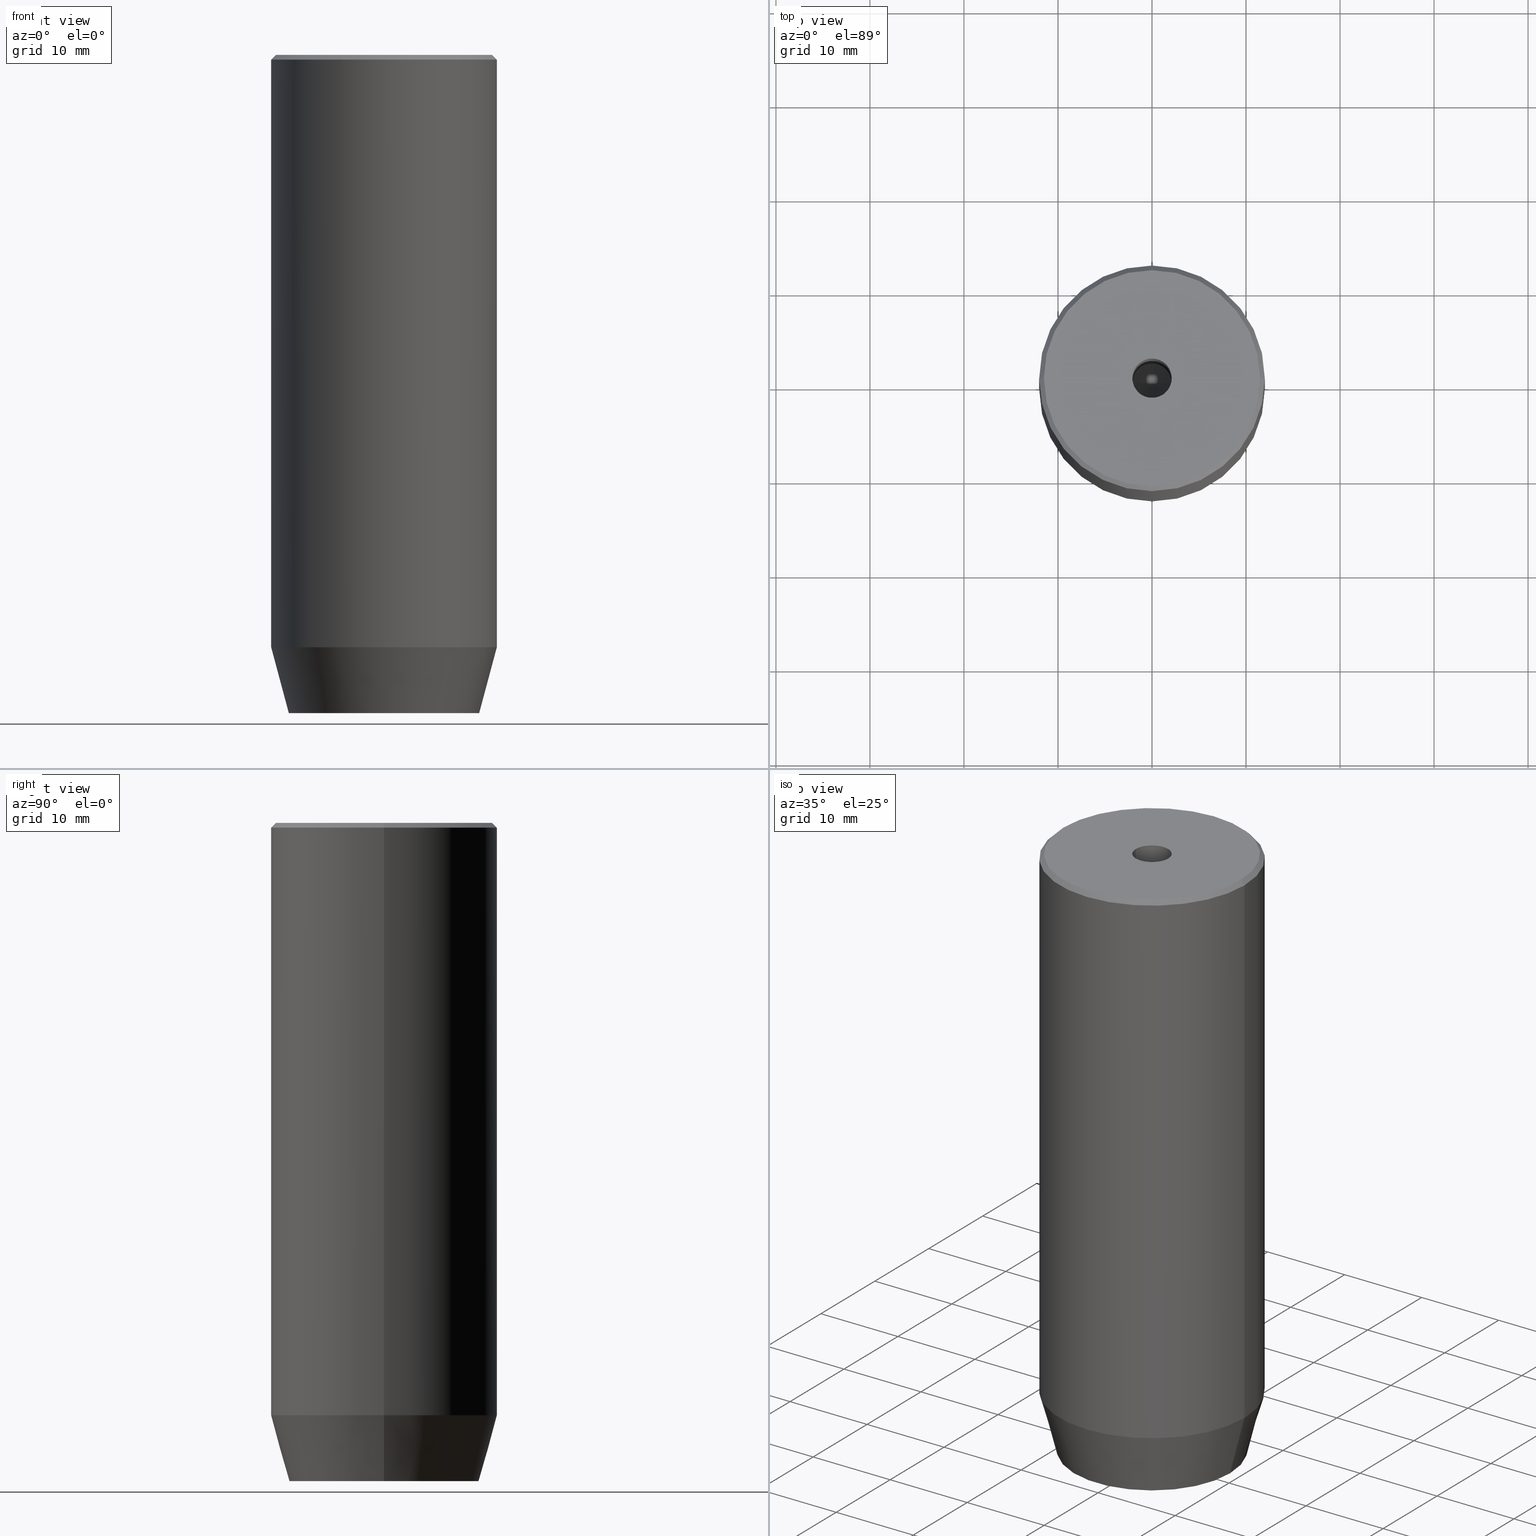
[diagram: canonical four-view strip — front | top / right | iso, engineering-drawing reading convention]
A machine part, canonical four-view strip (front | top / right | iso — engineering-drawing reading convention). The complete STEP part file that produces these views, byte-faithful:
ISO-10303-21;
HEADER;
FILE_DESCRIPTION (( 'STEP AP203' ),
    '1' );
FILE_NAME ('1490.STEP',
    '2024-01-02T17:16:59',
    ( '' ),
    ( '' ),
    'SwSTEP 2.0',
    'SolidWorks 2019',
    '' );
FILE_SCHEMA (( 'CONFIG_CONTROL_DESIGN' ));
ENDSEC;

DATA;
#1 = EDGE_LOOP ( 'NONE', ( #370, #400, #61, #119 ) ) ;
#2 = CARTESIAN_POINT ( 'NONE',  ( -4.000000000000000000, -2.309401076758503368, -67.20000000000000284 ) ) ;
#3 = ADVANCED_BREP_SHAPE_REPRESENTATION ( '1490', ( #512, #215 ), #463 ) ;
#4 = PLANE ( 'NONE',  #214 ) ;
#5 = EDGE_CURVE ( 'NONE', #216, #19, #452, .T. ) ;
#6 = AXIS2_PLACEMENT_3D ( 'NONE', #349, #426, #298 ) ;
#7 = CARTESIAN_POINT ( 'NONE',  ( -10.12435565298213547, 1.354726066681111050E-15, -70.00000000000000000 ) ) ;
#8 = CONICAL_SURFACE ( 'NONE', #102, 11.50000000000000888, 0.7853981633974482790 ) ;
#9 = ADVANCED_FACE ( 'NONE', ( #388 ), #477, .F. ) ;
#10 = FACE_OUTER_BOUND ( 'NONE', #42, .T. ) ;
#11 = DIRECTION ( 'NONE',  ( 1.000000000000000000, 0.000000000000000000, 0.000000000000000000 ) ) ;
#12 = AXIS2_PLACEMENT_3D ( 'NONE', #538, #484, #308 ) ;
#13 = DIRECTION ( 'NONE',  ( -0.000000000000000000, -0.000000000000000000, -1.000000000000000000 ) ) ;
#14 = VERTEX_POINT ( 'NONE', #166 ) ;
#15 = CC_DESIGN_APPROVAL ( #75, ( #112 ) ) ;
#16 = DIRECTION ( 'NONE',  ( -0.000000000000000000, -0.000000000000000000, 1.000000000000000000 ) ) ;
#17 = ORIENTED_EDGE ( 'NONE', *, *, #55, .T. ) ;
#18 = CARTESIAN_POINT ( 'NONE',  ( 2.000000000000000888, -3.464101615137754386, -70.00000000000000000 ) ) ;
#19 = VERTEX_POINT ( 'NONE', #209 ) ;
#20 = AXIS2_PLACEMENT_3D ( 'NONE', #435, #495, #437 ) ;
#21 = CARTESIAN_POINT ( 'NONE',  ( 4.000000000000000000, 2.309401076758503368, -67.20000000000000284 ) ) ;
#22 = EDGE_LOOP ( 'NONE', ( #517, #586, #278, #540 ) ) ;
#23 = CONICAL_SURFACE ( 'NONE', #193, 2.099999999999994760, 1.029744258676652535 ) ;
#24 = PLANE ( 'NONE',  #351 ) ;
#25 = ORIENTED_EDGE ( 'NONE', *, *, #157, .T. ) ;
#26 = PERSON_AND_ORGANIZATION_ROLE ( 'creator' ) ;
#27 = DIRECTION ( 'NONE',  ( -1.000000000000000000, 0.000000000000000000, -0.000000000000000000 ) ) ;
#28 = ORIENTED_EDGE ( 'NONE', *, *, #261, .T. ) ;
#29 = CARTESIAN_POINT ( 'NONE',  ( -4.000000000000000000, 0.000000000000000000, -67.20000000000000284 ) ) ;
#30 = ORIENTED_EDGE ( 'NONE', *, *, #354, .F. ) ;
#31 = LINE ( 'NONE', #160, #547 ) ;
#32 = CIRCLE ( 'NONE', #421, 10.12435565298213547 ) ;
#33 = DIRECTION ( 'NONE',  ( -1.000000000000000000, 0.000000000000000000, 0.000000000000000000 ) ) ;
#34 = EDGE_LOOP ( 'NONE', ( #235, #300, #101, #169 ) ) ;
#35 = EDGE_CURVE ( 'NONE', #519, #325, #394, .T. ) ;
#36 = FACE_OUTER_BOUND ( 'NONE', #534, .T. ) ;
#37 = DIRECTION ( 'NONE',  ( -0.5000000000000003331, -0.8660254037844385966, 0.000000000000000000 ) ) ;
#38 = APPLICATION_CONTEXT ( 'configuration controlled 3d designs of mechanical parts and assemblies' ) ;
#39 = CLOSED_SHELL ( 'NONE', ( #409, #326, #501, #181, #482, #466, #137, #79, #581, #130, #457, #405, #9, #198, #528, #327, #312, #361, #430 ) ) ;
#40 = CARTESIAN_POINT ( 'NONE',  ( 0.000000000000000000, 0.000000000000000000, -30.00000000000000000 ) ) ;
#41 = VECTOR ( 'NONE', #420, 1000.000000000000114 ) ;
#42 = EDGE_LOOP ( 'NONE', ( #439, #17 ) ) ;
#43 = AXIS2_PLACEMENT_3D ( 'NONE', #458, #16, #105 ) ;
#44 = LOCAL_TIME ( 18, 16, 59.00000000000000000, #431 ) ;
#45 = DIRECTION ( 'NONE',  ( 1.000000000000000000, 0.000000000000000000, 0.000000000000000000 ) ) ;
#46 = CC_DESIGN_PERSON_AND_ORGANIZATION_ASSIGNMENT ( #427, #200, ( #258 ) ) ;
#47 = EDGE_CURVE ( 'NONE', #382, #216, #31, .T. ) ;
#48 = CARTESIAN_POINT ( 'NONE',  ( -11.50000000000000888, 0.000000000000000000, 0.000000000000000000 ) ) ;
#49 = DIRECTION ( 'NONE',  ( 1.000000000000000000, 0.000000000000000000, 0.000000000000000000 ) ) ;
#50 = LINE ( 'NONE', #218, #277 ) ;
#51 = CARTESIAN_POINT ( 'NONE',  ( 4.000000000000000000, 0.000000000000000000, -70.00000000000000000 ) ) ;
#52 = LINE ( 'NONE', #18, #350 ) ;
#53 = ORIENTED_EDGE ( 'NONE', *, *, #5, .T. ) ;
#54 = FACE_OUTER_BOUND ( 'NONE', #114, .T. ) ;
#55 = EDGE_CURVE ( 'NONE', #250, #146, #107, .T. ) ;
#56 = ORIENTED_EDGE ( 'NONE', *, *, #47, .T. ) ;
#57 = SHAPE_DEFINITION_REPRESENTATION ( #496, #3 ) ;
#58 = CARTESIAN_POINT ( 'NONE',  ( 12.00000000000000000, 0.000000000000000000, -63.00000000000000000 ) ) ;
#59 = ORIENTED_EDGE ( 'NONE', *, *, #171, .F. ) ;
#60 = CARTESIAN_POINT ( 'NONE',  ( -12.00000000000000000, 1.469576158976823947E-15, -63.00000000000000000 ) ) ;
#61 = ORIENTED_EDGE ( 'NONE', *, *, #62, .T. ) ;
#62 = EDGE_CURVE ( 'NONE', #19, #216, #582, .T. ) ;
#63 = VECTOR ( 'NONE', #499, 1000.000000000000000 ) ;
#64 = FACE_OUTER_BOUND ( 'NONE', #531, .T. ) ;
#65 = VERTEX_POINT ( 'NONE', #71 ) ;
#66 = APPROVAL_PERSON_ORGANIZATION ( #383, #371, #346 ) ;
#67 = DIRECTION ( 'NONE',  ( 1.000000000000000000, 0.000000000000000000, 0.000000000000000000 ) ) ;
#68 = CARTESIAN_POINT ( 'NONE',  ( -2.000000000000000888, -3.464101615137754386, -67.20000000000000284 ) ) ;
#69 = CARTESIAN_POINT ( 'NONE',  ( 0.000000000000000000, 0.000000000000000000, 0.000000000000000000 ) ) ;
#70 = ORIENTED_EDGE ( 'NONE', *, *, #203, .T. ) ;
#71 = CARTESIAN_POINT ( 'NONE',  ( 2.099999999999998757, 0.000000000000000000, -1.990051048614449116E-16 ) ) ;
#72 = CIRCLE ( 'NONE', #395, 11.50000000000000888 ) ;
#73 = CARTESIAN_POINT ( 'NONE',  ( 4.000000000000000000, -2.309401076758502480, -70.00000000000000000 ) ) ;
#74 = LINE ( 'NONE', #164, #179 ) ;
#75 = APPROVAL ( #500, 'NEUR�EN�' ) ;
#76 = CIRCLE ( 'NONE', #529, 12.00000000000000000 ) ;
#77 = CYLINDRICAL_SURFACE ( 'NONE', #541, 12.00000000000000000 ) ;
#78 = ORIENTED_EDGE ( 'NONE', *, *, #245, .T. ) ;
#79 = ADVANCED_FACE ( 'NONE', ( #116 ), #398, .T. ) ;
#80 = DIRECTION ( 'NONE',  ( 0.8660254037844387076, 0.5000000000000001110, 0.000000000000000000 ) ) ;
#81 = DIRECTION ( 'NONE',  ( 0.8660254037844385966, -0.5000000000000001110, 0.000000000000000000 ) ) ;
#82 = PRODUCT ( '1490', '1490', '', ( #253 ) ) ;
#83 = ORIENTED_EDGE ( 'NONE', *, *, #354, .T. ) ;
#84 =( NAMED_UNIT ( * ) PLANE_ANGLE_UNIT ( ) SI_UNIT ( $, .RADIAN. ) );
#85 = CARTESIAN_POINT ( 'NONE',  ( 0.000000000000000000, 0.000000000000000000, 0.000000000000000000 ) ) ;
#86 = AXIS2_PLACEMENT_3D ( 'NONE', #234, #460, #415 ) ;
#87 = LINE ( 'NONE', #2, #584 ) ;
#88 = DIRECTION ( 'NONE',  ( -0.000000000000000000, -0.000000000000000000, 1.000000000000000000 ) ) ;
#89 = PLANE ( 'NONE',  #229 ) ;
#90 = VECTOR ( 'NONE', #129, 1000.000000000000114 ) ;
#91 = EDGE_CURVE ( 'NONE', #125, #373, #74, .T. ) ;
#92 = PRODUCT_RELATED_PRODUCT_CATEGORY ( 'detail', '', ( #82 ) ) ;
#93 = DIRECTION ( 'NONE',  ( -0.000000000000000000, -0.000000000000000000, 1.000000000000000000 ) ) ;
#94 = VECTOR ( 'NONE', #100, 1000.000000000000000 ) ;
#95 = CARTESIAN_POINT ( 'NONE',  ( 2.099999999999994760, 0.000000000000000000, -30.00000000000000000 ) ) ;
#96 = ORIENTED_EDGE ( 'NONE', *, *, #145, .T. ) ;
#97 = EDGE_CURVE ( 'NONE', #149, #264, #568, .T. ) ;
#98 = DIRECTION ( 'NONE',  ( 0.000000000000000000, -1.000000000000000000, 0.000000000000000000 ) ) ;
#99 = ORIENTED_EDGE ( 'NONE', *, *, #91, .F. ) ;
#100 = DIRECTION ( 'NONE',  ( -0.000000000000000000, -0.000000000000000000, -1.000000000000000000 ) ) ;
#101 = ORIENTED_EDGE ( 'NONE', *, *, #491, .F. ) ;
#102 = AXIS2_PLACEMENT_3D ( 'NONE', #381, #530, #33 ) ;
#103 = DIRECTION ( 'NONE',  ( -0.2588190451025213501, 3.169619151431772337E-17, 0.9659258262890680902 ) ) ;
#104 = EDGE_LOOP ( 'NONE', ( #334, #266, #25, #355 ) ) ;
#105 = DIRECTION ( 'NONE',  ( 1.000000000000000000, 0.000000000000000000, 0.000000000000000000 ) ) ;
#106 = ORIENTED_EDGE ( 'NONE', *, *, #344, .T. ) ;
#107 = CIRCLE ( 'NONE', #6, 11.50000000000000888 ) ;
#108 = CARTESIAN_POINT ( 'NONE',  ( -2.000000000000000000, 3.464101615137754830, -70.00000000000000000 ) ) ;
#109 = VERTEX_POINT ( 'NONE', #453 ) ;
#110 = VECTOR ( 'NONE', #240, 1000.000000000000000 ) ;
#111 = CALENDAR_DATE ( 2024, 2, 1 ) ;
#112 = SECURITY_CLASSIFICATION ( '', '', #399 ) ;
#113 = PLANE ( 'NONE',  #206 ) ;
#114 = EDGE_LOOP ( 'NONE', ( #522, #497, #83 ) ) ;
#115 = DIRECTION ( 'NONE',  ( -0.000000000000000000, -0.000000000000000000, 1.000000000000000000 ) ) ;
#116 = FACE_OUTER_BOUND ( 'NONE', #233, .T. ) ;
#117 = DATE_AND_TIME ( #161, #44 ) ;
#118 = CYLINDRICAL_SURFACE ( 'NONE', #585, 2.099999999999996980 ) ;
#119 = ORIENTED_EDGE ( 'NONE', *, *, #47, .F. ) ;
#120 = DIRECTION ( 'NONE',  ( -0.000000000000000000, -0.000000000000000000, 1.000000000000000000 ) ) ;
#121 = COORDINATED_UNIVERSAL_TIME_OFFSET ( 1, 0, .AHEAD. ) ;
#122 = CIRCLE ( 'NONE', #572, 2.099999999999998757 ) ;
#123 = CARTESIAN_POINT ( 'NONE',  ( 10.12435565298213547, 0.000000000000000000, -70.00000000000000000 ) ) ;
#124 = VERTEX_POINT ( 'NONE', #127 ) ;
#125 = VERTEX_POINT ( 'NONE', #271 ) ;
#126 = CARTESIAN_POINT ( 'NONE',  ( 0.000000000000000000, 0.000000000000000000, -70.00000000000000000 ) ) ;
#127 = CARTESIAN_POINT ( 'NONE',  ( -4.000000000000000000, 2.309401076758503368, -70.00000000000000000 ) ) ;
#128 = DIRECTION ( 'NONE',  ( 0.000000000000000000, 0.000000000000000000, -1.000000000000000000 ) ) ;
#129 = DIRECTION ( 'NONE',  ( -0.7071067811865474617, 0.000000000000000000, -0.7071067811865474617 ) ) ;
#130 = ADVANCED_FACE ( 'NONE', ( #406 ), #485, .T. ) ;
#131 = CARTESIAN_POINT ( 'NONE',  ( 4.336808689942017736E-16, -4.618802153517006737, -67.20000000000000284 ) ) ;
#132 = LINE ( 'NONE', #131, #489 ) ;
#133 = LINE ( 'NONE', #328, #134 ) ;
#134 = VECTOR ( 'NONE', #98, 1000.000000000000000 ) ;
#135 = VECTOR ( 'NONE', #436, 1000.000000000000000 ) ;
#136 = EDGE_CURVE ( 'NONE', #146, #19, #170, .T. ) ;
#137 = ADVANCED_FACE ( 'NONE', ( #502, #10 ), #89, .T. ) ;
#138 = CC_DESIGN_PERSON_AND_ORGANIZATION_ASSIGNMENT ( #239, #26, ( #470 ) ) ;
#139 = LINE ( 'NONE', #285, #322 ) ;
#140 = EDGE_CURVE ( 'NONE', #211, #264, #224, .T. ) ;
#141 = ORIENTED_EDGE ( 'NONE', *, *, #491, .T. ) ;
#142 = CARTESIAN_POINT ( 'NONE',  ( -4.000000000000000000, -2.309401076758503368, -70.00000000000000000 ) ) ;
#143 = ORIENTED_EDGE ( 'NONE', *, *, #5, .F. ) ;
#144 = FACE_OUTER_BOUND ( 'NONE', #345, .T. ) ;
#145 = EDGE_CURVE ( 'NONE', #14, #257, #50, .T. ) ;
#146 = VERTEX_POINT ( 'NONE', #48 ) ;
#147 = VECTOR ( 'NONE', #578, 1000.000000000000000 ) ;
#148 = CARTESIAN_POINT ( 'NONE',  ( 12.00000000000000000, 0.000000000000000000, -63.00000000000000000 ) ) ;
#149 = VERTEX_POINT ( 'NONE', #359 ) ;
#150 = CARTESIAN_POINT ( 'NONE',  ( 0.000000000000000000, 4.618802153517006737, -67.20000000000000284 ) ) ;
#151 = ORIENTED_EDGE ( 'NONE', *, *, #97, .T. ) ;
#152 = APPROVAL_ROLE ( '' ) ;
#153 = LINE ( 'NONE', #29, #223 ) ;
#154 = ORIENTED_EDGE ( 'NONE', *, *, #397, .F. ) ;
#155 = DIRECTION ( 'NONE',  ( 1.000000000000000000, 0.000000000000000000, 0.000000000000000000 ) ) ;
#156 = EDGE_CURVE ( 'NONE', #542, #65, #510, .T. ) ;
#157 = EDGE_CURVE ( 'NONE', #149, #65, #318, .T. ) ;
#158 = FACE_OUTER_BOUND ( 'NONE', #1, .T. ) ;
#159 = LINE ( 'NONE', #511, #147 ) ;
#160 = CARTESIAN_POINT ( 'NONE',  ( 12.00000000000000000, 0.000000000000000000, 0.000000000000000000 ) ) ;
#161 = CALENDAR_DATE ( 2024, 2, 1 ) ;
#162 = CARTESIAN_POINT ( 'NONE',  ( -2.099999999999998757, 2.571758278209440478E-16, -1.990051048614449116E-16 ) ) ;
#163 = CARTESIAN_POINT ( 'NONE',  ( 0.000000000000000000, 0.000000000000000000, 0.000000000000000000 ) ) ;
#164 = CARTESIAN_POINT ( 'NONE',  ( 2.000000000000000444, 3.464101615137754386, -67.20000000000000284 ) ) ;
#165 = FACE_OUTER_BOUND ( 'NONE', #473, .T. ) ;
#166 = CARTESIAN_POINT ( 'NONE',  ( 4.336808689942017736E-16, -4.618802153517006737, -70.00000000000000000 ) ) ;
#167 = EDGE_CURVE ( 'NONE', #146, #250, #72, .T. ) ;
#168 = ORIENTED_EDGE ( 'NONE', *, *, #411, .F. ) ;
#169 = ORIENTED_EDGE ( 'NONE', *, *, #226, .T. ) ;
#170 = LINE ( 'NONE', #267, #90 ) ;
#171 = EDGE_CURVE ( 'NONE', #348, #382, #472, .T. ) ;
#172 = CARTESIAN_POINT ( 'NONE',  ( 0.000000000000000000, 0.000000000000000000, 0.000000000000000000 ) ) ;
#173 = COORDINATED_UNIVERSAL_TIME_OFFSET ( 1, 0, .AHEAD. ) ;
#174 = EDGE_CURVE ( 'NONE', #257, #124, #549, .T. ) ;
#175 = VECTOR ( 'NONE', #80, 999.9999999999998863 ) ;
#176 = CARTESIAN_POINT ( 'NONE',  ( 0.000000000000000000, 0.000000000000000000, -1.990051048614449116E-16 ) ) ;
#177 = CALENDAR_DATE ( 2024, 2, 1 ) ;
#178 = DIRECTION ( 'NONE',  ( -0.8660254037844384856, 0.5000000000000002220, 0.000000000000000000 ) ) ;
#179 = VECTOR ( 'NONE', #81, 1000.000000000000000 ) ;
#180 = DIRECTION ( 'NONE',  ( -0.8660254037844384856, -0.5000000000000002220, 0.000000000000000000 ) ) ;
#181 = ADVANCED_FACE ( 'NONE', ( #353 ), #280, .T. ) ;
#182 = AXIS2_PLACEMENT_3D ( 'NONE', #372, #232, #185 ) ;
#183 = DIRECTION ( 'NONE',  ( -0.000000000000000000, -0.000000000000000000, 1.000000000000000000 ) ) ;
#184 = ORIENTED_EDGE ( 'NONE', *, *, #507, .T. ) ;
#185 = DIRECTION ( 'NONE',  ( 1.000000000000000000, 0.000000000000000000, 0.000000000000000000 ) ) ;
#186 = ORIENTED_EDGE ( 'NONE', *, *, #35, .T. ) ;
#187 = DIRECTION ( 'NONE',  ( 0.8571673007021113344, 0.000000000000000000, 0.5150380749100558209 ) ) ;
#188 = ORIENTED_EDGE ( 'NONE', *, *, #456, .T. ) ;
#189 = EDGE_CURVE ( 'NONE', #241, #14, #132, .T. ) ;
#190 = CARTESIAN_POINT ( 'NONE',  ( -12.00000000000000000, 1.469576158976823947E-15, -63.00000000000000000 ) ) ;
#191 = ORIENTED_EDGE ( 'NONE', *, *, #171, .T. ) ;
#192 = CC_DESIGN_DATE_AND_TIME_ASSIGNMENT ( #545, #396, ( #112 ) ) ;
#193 = AXIS2_PLACEMENT_3D ( 'NONE', #330, #183, #556 ) ;
#194 = DIRECTION ( 'NONE',  ( 0.000000000000000000, 0.000000000000000000, -1.000000000000000000 ) ) ;
#195 = VERTEX_POINT ( 'NONE', #320 ) ;
#196 = DATE_TIME_ROLE ( 'creation_date' ) ;
#197 = DIRECTION ( 'NONE',  ( 0.8660254037844387076, 0.5000000000000001110, 0.000000000000000000 ) ) ;
#198 = ADVANCED_FACE ( 'NONE', ( #513 ), #4, .F. ) ;
#199 = ORIENTED_EDGE ( 'NONE', *, *, #507, .F. ) ;
#200 = PERSON_AND_ORGANIZATION_ROLE ( 'creator' ) ;
#201 = DIRECTION ( 'NONE',  ( 0.000000000000000000, 0.000000000000000000, 1.000000000000000000 ) ) ;
#202 = ORIENTED_EDGE ( 'NONE', *, *, #344, .F. ) ;
#203 = EDGE_CURVE ( 'NONE', #325, #480, #314, .T. ) ;
#204 = EDGE_LOOP ( 'NONE', ( #377, #524 ) ) ;
#205 = CONICAL_SURFACE ( 'NONE', #43, 2.099999999999994760, 1.029744258676652535 ) ;
#206 = AXIS2_PLACEMENT_3D ( 'NONE', #479, #392, #525 ) ;
#207 = PERSON ( 'NEUR�EN�', 'NEUR�EN�', 'NEUR�EN�', ('NEUR�EN�'), ('NEUR�EN�'), ('NEUR�EN�') ) ;
#208 = CARTESIAN_POINT ( 'NONE',  ( 0.000000000000000000, 4.618802153517006737, -70.00000000000000000 ) ) ;
#209 = CARTESIAN_POINT ( 'NONE',  ( -12.00000000000000000, 1.469576158976823947E-15, -0.4999999999999917843 ) ) ;
#210 = ORIENTED_EDGE ( 'NONE', *, *, #289, .T. ) ;
#211 = VERTEX_POINT ( 'NONE', #444 ) ;
#212 = CARTESIAN_POINT ( 'NONE',  ( 0.000000000000000000, 0.000000000000000000, 0.000000000000000000 ) ) ;
#213 = EDGE_LOOP ( 'NONE', ( #255, #237, #526, #143 ) ) ;
#214 = AXIS2_PLACEMENT_3D ( 'NONE', #273, #455, #362 ) ;
#215 = AXIS2_PLACEMENT_3D ( 'NONE', #212, #414, #155 ) ;
#216 = VERTEX_POINT ( 'NONE', #401 ) ;
#217 = DIRECTION ( 'NONE',  ( -0.000000000000000000, -0.000000000000000000, 1.000000000000000000 ) ) ;
#218 = CARTESIAN_POINT ( 'NONE',  ( -2.000000000000000888, -3.464101615137754386, -70.00000000000000000 ) ) ;
#219 = UNCERTAINTY_MEASURE_WITH_UNIT (LENGTH_MEASURE( 1.000000000000000082E-05 ), #301, 'distance_accuracy_value', 'NONE');
#220 = DIRECTION ( 'NONE',  ( -0.000000000000000000, -0.000000000000000000, 1.000000000000000000 ) ) ;
#221 = CARTESIAN_POINT ( 'NONE',  ( 4.336808689942017736E-16, -4.618802153517006737, -67.20000000000000284 ) ) ;
#222 = VECTOR ( 'NONE', #13, 1000.000000000000000 ) ;
#223 = VECTOR ( 'NONE', #428, 1000.000000000000000 ) ;
#224 = LINE ( 'NONE', #270, #252 ) ;
#225 = DIRECTION ( 'NONE',  ( 1.000000000000000000, 0.000000000000000000, 0.000000000000000000 ) ) ;
#226 = EDGE_CURVE ( 'NONE', #109, #257, #87, .T. ) ;
#227 = DIRECTION ( 'NONE',  ( 0.000000000000000000, -1.000000000000000000, 0.000000000000000000 ) ) ;
#228 = DIRECTION ( 'NONE',  ( -1.000000000000000000, 0.000000000000000000, -0.000000000000000000 ) ) ;
#229 = AXIS2_PLACEMENT_3D ( 'NONE', #508, #403, #11 ) ;
#230 = VERTEX_POINT ( 'NONE', #7 ) ;
#231 = AXIS2_PLACEMENT_3D ( 'NONE', #554, #402, #45 ) ;
#232 = DIRECTION ( 'NONE',  ( -0.000000000000000000, -0.000000000000000000, 1.000000000000000000 ) ) ;
#233 = EDGE_LOOP ( 'NONE', ( #443, #191, #56, #53 ) ) ;
#234 = CARTESIAN_POINT ( 'NONE',  ( 0.000000000000000000, 0.000000000000000000, -30.00000000000000000 ) ) ;
#235 = ORIENTED_EDGE ( 'NONE', *, *, #174, .T. ) ;
#236 = DIRECTION ( 'NONE',  ( 0.7071067811865474617, 8.659560562354932858E-17, -0.7071067811865474617 ) ) ;
#237 = ORIENTED_EDGE ( 'NONE', *, *, #167, .F. ) ;
#238 = VECTOR ( 'NONE', #246, 1000.000000000000000 ) ;
#239 = PERSON_AND_ORGANIZATION ( #207, #551 ) ;
#240 = DIRECTION ( 'NONE',  ( 0.2588190451025213501, 0.000000000000000000, 0.9659258262890680902 ) ) ;
#241 = VERTEX_POINT ( 'NONE', #221 ) ;
#242 = AXIS2_PLACEMENT_3D ( 'NONE', #393, #217, #433 ) ;
#243 = APPLICATION_PROTOCOL_DEFINITION ( 'international standard', 'config_control_design', 1994, #575 ) ;
#244 = FACE_OUTER_BOUND ( 'NONE', #329, .T. ) ;
#245 = EDGE_CURVE ( 'NONE', #286, #480, #553, .T. ) ;
#246 = DIRECTION ( 'NONE',  ( 0.8660254037844385966, -0.5000000000000001110, 0.000000000000000000 ) ) ;
#247 = APPROVAL ( #380, 'NEUR�EN�' ) ;
#248 = EDGE_CURVE ( 'NONE', #480, #14, #52, .T. ) ;
#249 = FACE_OUTER_BOUND ( 'NONE', #22, .T. ) ;
#250 = VERTEX_POINT ( 'NONE', #515 ) ;
#251 = ORIENTED_EDGE ( 'NONE', *, *, #157, .F. ) ;
#252 = VECTOR ( 'NONE', #310, 1000.000000000000000 ) ;
#253 = MECHANICAL_CONTEXT ( 'NONE', #38, 'mechanical' ) ;
#254 = DIRECTION ( 'NONE',  ( -0.000000000000000000, -0.000000000000000000, 1.000000000000000000 ) ) ;
#255 = ORIENTED_EDGE ( 'NONE', *, *, #365, .F. ) ;
#256 = FACE_OUTER_BOUND ( 'NONE', #309, .T. ) ;
#257 = VERTEX_POINT ( 'NONE', #142 ) ;
#258 = PRODUCT_DEFINITION_FORMATION_WITH_SPECIFIED_SOURCE ( 'LIBOVOLN�', '', #82, .NOT_KNOWN. ) ;
#259 = CARTESIAN_POINT ( 'NONE',  ( 0.000000000000000000, 0.000000000000000000, 0.000000000000000000 ) ) ;
#260 = ORIENTED_EDGE ( 'NONE', *, *, #289, .F. ) ;
#261 = EDGE_CURVE ( 'NONE', #241, #109, #376, .T. ) ;
#262 = DIRECTION ( 'NONE',  ( 1.000000000000000000, 0.000000000000000000, 0.000000000000000000 ) ) ;
#263 = ORIENTED_EDGE ( 'NONE', *, *, #189, .T. ) ;
#264 = VERTEX_POINT ( 'NONE', #471 ) ;
#265 = PERSON_AND_ORGANIZATION ( #207, #551 ) ;
#266 = ORIENTED_EDGE ( 'NONE', *, *, #97, .F. ) ;
#267 = CARTESIAN_POINT ( 'NONE',  ( -11.50000000000000888, 0.000000000000000000, 0.000000000000000000 ) ) ;
#268 = DIRECTION ( 'NONE',  ( -0.000000000000000000, -0.000000000000000000, -1.000000000000000000 ) ) ;
#269 = EDGE_CURVE ( 'NONE', #488, #230, #419, .T. ) ;
#270 = CARTESIAN_POINT ( 'NONE',  ( -2.099999999999994760, 2.571758278209435054E-16, -30.00000000000000000 ) ) ;
#271 = CARTESIAN_POINT ( 'NONE',  ( 0.000000000000000000, 4.618802153517006737, -67.20000000000000284 ) ) ;
#272 = EDGE_CURVE ( 'NONE', #373, #286, #133, .T. ) ;
#273 = CARTESIAN_POINT ( 'NONE',  ( 2.000000000000000888, -3.464101615137754386, -67.20000000000000284 ) ) ;
#274 = DIRECTION ( 'NONE',  ( 0.000000000000000000, 0.000000000000000000, -1.000000000000000000 ) ) ;
#275 = EDGE_LOOP ( 'NONE', ( #583, #559, #260, #78 ) ) ;
#276 = CARTESIAN_POINT ( 'NONE',  ( -12.00000000000000000, 1.469576158976823947E-15, 0.000000000000000000 ) ) ;
#277 = VECTOR ( 'NONE', #178, 1000.000000000000114 ) ;
#278 = ORIENTED_EDGE ( 'NONE', *, *, #62, .F. ) ;
#279 = DATE_AND_TIME ( #177, #434 ) ;
#280 = CONICAL_SURFACE ( 'NONE', #231, 12.00000000000000000, 0.2617993877991500740 ) ;
#281 = LINE ( 'NONE', #58, #110 ) ;
#282 = AXIS2_PLACEMENT_3D ( 'NONE', #69, #254, #67 ) ;
#283 = EDGE_CURVE ( 'NONE', #211, #149, #555, .T. ) ;
#284 = EDGE_LOOP ( 'NONE', ( #168, #410, #465, #336, #423, #413 ) ) ;
#285 = CARTESIAN_POINT ( 'NONE',  ( 11.50000000000000888, 1.408343819019457359E-15, 0.000000000000000000 ) ) ;
#286 = VERTEX_POINT ( 'NONE', #369 ) ;
#287 = CARTESIAN_POINT ( 'NONE',  ( 0.000000000000000000, 0.000000000000000000, -63.00000000000000000 ) ) ;
#288 = EDGE_LOOP ( 'NONE', ( #379, #385, #332, #210, #28, #141 ) ) ;
#289 = EDGE_CURVE ( 'NONE', #286, #241, #518, .T. ) ;
#290 = EDGE_CURVE ( 'NONE', #488, #382, #281, .T. ) ;
#291 = DIRECTION ( 'NONE',  ( 1.000000000000000000, 0.000000000000000000, 0.000000000000000000 ) ) ;
#292 = AXIS2_PLACEMENT_3D ( 'NONE', #408, #274, #228 ) ;
#293 = ORIENTED_EDGE ( 'NONE', *, *, #245, .F. ) ;
#294 = VECTOR ( 'NONE', #103, 1000.000000000000000 ) ;
#295 = DATE_AND_TIME ( #111, #368 ) ;
#296 = LINE ( 'NONE', #487, #404 ) ;
#297 = EDGE_LOOP ( 'NONE', ( #30, #188, #565, #251 ) ) ;
#298 = DIRECTION ( 'NONE',  ( 1.000000000000000000, 0.000000000000000000, 0.000000000000000000 ) ) ;
#299 = FACE_OUTER_BOUND ( 'NONE', #297, .T. ) ;
#300 = ORIENTED_EDGE ( 'NONE', *, *, #560, .F. ) ;
#301 =( LENGTH_UNIT ( ) NAMED_UNIT ( * ) SI_UNIT ( .MILLI., .METRE. ) );
#302 = ORIENTED_EDGE ( 'NONE', *, *, #363, .T. ) ;
#303 = APPROVAL_STATUS ( 'not_yet_approved' ) ;
#304 = DIRECTION ( 'NONE',  ( -0.000000000000000000, -0.000000000000000000, 1.000000000000000000 ) ) ;
#305 = DIRECTION ( 'NONE',  ( 1.000000000000000000, 0.000000000000000000, 0.000000000000000000 ) ) ;
#306 = CIRCLE ( 'NONE', #86, 2.099999999999994760 ) ;
#307 = FACE_OUTER_BOUND ( 'NONE', #34, .T. ) ;
#308 = DIRECTION ( 'NONE',  ( 1.000000000000000000, 0.000000000000000000, 0.000000000000000000 ) ) ;
#309 = EDGE_LOOP ( 'NONE', ( #390, #461, #339, #59 ) ) ;
#310 = DIRECTION ( 'NONE',  ( -0.8571673007021113344, 1.049727191138617463E-16, 0.5150380749100558209 ) ) ;
#311 = AXIS2_PLACEMENT_3D ( 'NONE', #40, #120, #305 ) ;
#312 = ADVANCED_FACE ( 'NONE', ( #374 ), #523, .T. ) ;
#313 = AXIS2_PLACEMENT_3D ( 'NONE', #176, #93, #407 ) ;
#314 = LINE ( 'NONE', #51, #367 ) ;
#315 = VECTOR ( 'NONE', #304, 1000.000000000000000 ) ;
#316 = CARTESIAN_POINT ( 'NONE',  ( -4.000000000000000000, 0.000000000000000000, -70.00000000000000000 ) ) ;
#317 = DESIGN_CONTEXT ( 'detailed design', #575, 'design' ) ;
#318 = LINE ( 'NONE', #449, #63 ) ;
#319 = EDGE_CURVE ( 'NONE', #348, #19, #564, .T. ) ;
#320 = CARTESIAN_POINT ( 'NONE',  ( -4.000000000000000000, 2.309401076758503368, -67.20000000000000284 ) ) ;
#321 = VECTOR ( 'NONE', #187, 1000.000000000000000 ) ;
#322 = VECTOR ( 'NONE', #236, 1000.000000000000114 ) ;
#323 = CARTESIAN_POINT ( 'NONE',  ( 4.000000000000000000, 2.309401076758503368, -70.00000000000000000 ) ) ;
#324 = LINE ( 'NONE', #190, #294 ) ;
#325 = VERTEX_POINT ( 'NONE', #323 ) ;
#326 = ADVANCED_FACE ( 'NONE', ( #54 ), #205, .F. ) ;
#327 = ADVANCED_FACE ( 'NONE', ( #64 ), #333, .F. ) ;
#328 = CARTESIAN_POINT ( 'NONE',  ( 4.000000000000000000, 0.000000000000000000, -67.20000000000000284 ) ) ;
#329 = EDGE_LOOP ( 'NONE', ( #468, #199, #562, #418 ) ) ;
#330 = CARTESIAN_POINT ( 'NONE',  ( 0.000000000000000000, 0.000000000000000000, -30.00000000000000000 ) ) ;
#331 = APPROVAL_PERSON_ORGANIZATION ( #486, #247, #152 ) ;
#332 = ORIENTED_EDGE ( 'NONE', *, *, #272, .T. ) ;
#333 = PLANE ( 'NONE',  #550 ) ;
#334 = ORIENTED_EDGE ( 'NONE', *, *, #456, .F. ) ;
#335 = DIRECTION ( 'NONE',  ( -0.000000000000000000, -0.000000000000000000, 1.000000000000000000 ) ) ;
#336 = ORIENTED_EDGE ( 'NONE', *, *, #248, .F. ) ;
#337 = PERSON_AND_ORGANIZATION_ROLE ( 'design_owner' ) ;
#338 = LINE ( 'NONE', #108, #175 ) ;
#339 = ORIENTED_EDGE ( 'NONE', *, *, #290, .T. ) ;
#340 = DIRECTION ( 'NONE',  ( 1.000000000000000000, 0.000000000000000000, 0.000000000000000000 ) ) ;
#341 =( NAMED_UNIT ( * ) SI_UNIT ( $, .STERADIAN. ) SOLID_ANGLE_UNIT ( ) );
#342 = EDGE_LOOP ( 'NONE', ( #96, #567, #577, #263 ) ) ;
#343 = DIRECTION ( 'NONE',  ( 1.000000000000000000, 0.000000000000000000, 0.000000000000000000 ) ) ;
#344 = EDGE_CURVE ( 'NONE', #373, #325, #521, .T. ) ;
#345 = EDGE_LOOP ( 'NONE', ( #557, #459, #151 ) ) ;
#346 = APPROVAL_ROLE ( '' ) ;
#347 = DIRECTION ( 'NONE',  ( -0.000000000000000000, -0.000000000000000000, 1.000000000000000000 ) ) ;
#348 = VERTEX_POINT ( 'NONE', #60 ) ;
#349 = CARTESIAN_POINT ( 'NONE',  ( 0.000000000000000000, 0.000000000000000000, 0.000000000000000000 ) ) ;
#350 = VECTOR ( 'NONE', #558, 1000.000000000000114 ) ;
#351 = AXIS2_PLACEMENT_3D ( 'NONE', #566, #533, #483 ) ;
#352 = APPROVAL_ROLE ( '' ) ;
#353 = FACE_OUTER_BOUND ( 'NONE', #375, .T. ) ;
#354 = EDGE_CURVE ( 'NONE', #264, #149, #306, .T. ) ;
#355 = ORIENTED_EDGE ( 'NONE', *, *, #451, .T. ) ;
#356 = CC_DESIGN_PERSON_AND_ORGANIZATION_ASSIGNMENT ( #474, #337, ( #82 ) ) ;
#357 = DIRECTION ( 'NONE',  ( -1.000000000000000000, 0.000000000000000000, 0.000000000000000000 ) ) ;
#358 = CALENDAR_DATE ( 2024, 2, 1 ) ;
#359 = CARTESIAN_POINT ( 'NONE',  ( 2.099999999999994760, 0.000000000000000000, -30.00000000000000000 ) ) ;
#360 = LOCAL_TIME ( 18, 16, 59.00000000000000000, #173 ) ;
#361 = ADVANCED_FACE ( 'NONE', ( #144 ), #23, .F. ) ;
#362 = DIRECTION ( 'NONE',  ( 0.8660254037844384856, 0.5000000000000002220, 0.000000000000000000 ) ) ;
#363 = EDGE_CURVE ( 'NONE', #230, #348, #324, .T. ) ;
#364 = DIRECTION ( 'NONE',  ( 0.000000000000000000, 1.000000000000000000, 0.000000000000000000 ) ) ;
#365 = EDGE_CURVE ( 'NONE', #250, #216, #139, .T. ) ;
#366 = DIRECTION ( 'NONE',  ( -0.000000000000000000, -0.000000000000000000, 1.000000000000000000 ) ) ;
#367 = VECTOR ( 'NONE', #227, 1000.000000000000000 ) ;
#368 = LOCAL_TIME ( 18, 16, 59.00000000000000000, #527 ) ;
#369 = CARTESIAN_POINT ( 'NONE',  ( 4.000000000000000000, -2.309401076758502480, -67.20000000000000284 ) ) ;
#370 = ORIENTED_EDGE ( 'NONE', *, *, #397, .T. ) ;
#371 = APPROVAL ( #303, 'NEUR�EN�' ) ;
#372 = CARTESIAN_POINT ( 'NONE',  ( 0.000000000000000000, 0.000000000000000000, -70.00000000000000000 ) ) ;
#373 = VERTEX_POINT ( 'NONE', #21 ) ;
#374 = FACE_OUTER_BOUND ( 'NONE', #288, .T. ) ;
#375 = EDGE_LOOP ( 'NONE', ( #416, #302, #154, #570 ) ) ;
#376 = LINE ( 'NONE', #516, #41 ) ;
#377 = ORIENTED_EDGE ( 'NONE', *, *, #451, .F. ) ;
#378 = DIRECTION ( 'NONE',  ( -0.000000000000000000, -0.000000000000000000, 1.000000000000000000 ) ) ;
#379 = ORIENTED_EDGE ( 'NONE', *, *, #469, .T. ) ;
#380 = APPROVAL_STATUS ( 'not_yet_approved' ) ;
#381 = CARTESIAN_POINT ( 'NONE',  ( 0.000000000000000000, 0.000000000000000000, 0.000000000000000000 ) ) ;
#382 = VERTEX_POINT ( 'NONE', #148 ) ;
#383 = PERSON_AND_ORGANIZATION ( #207, #551 ) ;
#384 = CYLINDRICAL_SURFACE ( 'NONE', #282, 2.099999999999996980 ) ;
#385 = ORIENTED_EDGE ( 'NONE', *, *, #91, .T. ) ;
#386 = VECTOR ( 'NONE', #364, 1000.000000000000000 ) ;
#387 = CC_DESIGN_APPROVAL ( #247, ( #258 ) ) ;
#388 = FACE_OUTER_BOUND ( 'NONE', #342, .T. ) ;
#389 = PLANE ( 'NONE',  #563 ) ;
#390 = ORIENTED_EDGE ( 'NONE', *, *, #363, .F. ) ;
#391 = DIRECTION ( 'NONE',  ( -0.000000000000000000, -0.000000000000000000, 1.000000000000000000 ) ) ;
#392 = DIRECTION ( 'NONE',  ( 1.000000000000000000, 0.000000000000000000, -0.000000000000000000 ) ) ;
#393 = CARTESIAN_POINT ( 'NONE',  ( 0.000000000000000000, 0.000000000000000000, -63.00000000000000000 ) ) ;
#394 = LINE ( 'NONE', #574, #238 ) ;
#395 = AXIS2_PLACEMENT_3D ( 'NONE', #85, #88, #49 ) ;
#396 = DATE_TIME_ROLE ( 'classification_date' ) ;
#397 = EDGE_CURVE ( 'NONE', #382, #348, #76, .T. ) ;
#398 = CYLINDRICAL_SURFACE ( 'NONE', #12, 12.00000000000000000 ) ;
#399 = SECURITY_CLASSIFICATION_LEVEL ( 'unclassified' ) ;
#400 = ORIENTED_EDGE ( 'NONE', *, *, #319, .T. ) ;
#401 = CARTESIAN_POINT ( 'NONE',  ( 12.00000000000000000, 0.000000000000000000, -0.4999999999999917843 ) ) ;
#402 = DIRECTION ( 'NONE',  ( -0.000000000000000000, -0.000000000000000000, 1.000000000000000000 ) ) ;
#403 = DIRECTION ( 'NONE',  ( 0.000000000000000000, -0.000000000000000000, 1.000000000000000000 ) ) ;
#404 = VECTOR ( 'NONE', #197, 999.9999999999998863 ) ;
#405 = ADVANCED_FACE ( 'NONE', ( #307 ), #389, .F. ) ;
#406 = FACE_OUTER_BOUND ( 'NONE', #213, .T. ) ;
#407 = DIRECTION ( 'NONE',  ( 1.000000000000000000, 0.000000000000000000, 0.000000000000000000 ) ) ;
#408 = CARTESIAN_POINT ( 'NONE',  ( 0.000000000000000000, 0.000000000000000000, -67.20000000000000284 ) ) ;
#409 = ADVANCED_FACE ( 'NONE', ( #299 ), #384, .F. ) ;
#410 = ORIENTED_EDGE ( 'NONE', *, *, #174, .F. ) ;
#411 = EDGE_CURVE ( 'NONE', #124, #519, #338, .T. ) ;
#412 = CARTESIAN_POINT ( 'NONE',  ( 2.000000000000000444, 3.464101615137754386, -67.20000000000000284 ) ) ;
#413 = ORIENTED_EDGE ( 'NONE', *, *, #35, .F. ) ;
#414 = DIRECTION ( 'NONE',  ( 0.000000000000000000, 0.000000000000000000, 1.000000000000000000 ) ) ;
#415 = DIRECTION ( 'NONE',  ( 1.000000000000000000, 0.000000000000000000, 0.000000000000000000 ) ) ;
#416 = ORIENTED_EDGE ( 'NONE', *, *, #269, .T. ) ;
#417 = DIRECTION ( 'NONE',  ( 0.5000000000000001110, 0.8660254037844385966, -0.000000000000000000 ) ) ;
#418 = ORIENTED_EDGE ( 'NONE', *, *, #560, .T. ) ;
#419 = CIRCLE ( 'NONE', #182, 10.12435565298213547 ) ;
#420 = DIRECTION ( 'NONE',  ( -0.8660254037844384856, 0.5000000000000002220, 0.000000000000000000 ) ) ;
#421 = AXIS2_PLACEMENT_3D ( 'NONE', #126, #498, #225 ) ;
#422 = CC_DESIGN_SECURITY_CLASSIFICATION ( #112, ( #258 ) ) ;
#423 = ORIENTED_EDGE ( 'NONE', *, *, #203, .F. ) ;
#424 = APPROVAL_DATE_TIME ( #532, #371 ) ;
#425 = PLANE ( 'NONE',  #520 ) ;
#426 = DIRECTION ( 'NONE',  ( -0.000000000000000000, -0.000000000000000000, 1.000000000000000000 ) ) ;
#427 = PERSON_AND_ORGANIZATION ( #207, #551 ) ;
#428 = DIRECTION ( 'NONE',  ( 0.000000000000000000, 1.000000000000000000, 0.000000000000000000 ) ) ;
#429 = DIRECTION ( 'NONE',  ( 0.8660254037844384856, -0.5000000000000002220, 0.000000000000000000 ) ) ;
#430 = ADVANCED_FACE ( 'NONE', ( #475 ), #118, .F. ) ;
#431 = COORDINATED_UNIVERSAL_TIME_OFFSET ( 1, 0, .AHEAD. ) ;
#432 = CARTESIAN_POINT ( 'NONE',  ( 0.000000000000000000, 0.000000000000000000, -1.990051048614449116E-16 ) ) ;
#433 = DIRECTION ( 'NONE',  ( 1.000000000000000000, 0.000000000000000000, 0.000000000000000000 ) ) ;
#434 = LOCAL_TIME ( 18, 16, 59.00000000000000000, #552 ) ;
#435 = CARTESIAN_POINT ( 'NONE',  ( 0.000000000000000000, 0.000000000000000000, -0.4999999999999917843 ) ) ;
#436 = DIRECTION ( 'NONE',  ( -0.000000000000000000, -0.000000000000000000, -1.000000000000000000 ) ) ;
#437 = DIRECTION ( 'NONE',  ( 1.000000000000000000, 0.000000000000000000, 0.000000000000000000 ) ) ;
#438 = PERSON_AND_ORGANIZATION_ROLE ( 'classification_officer' ) ;
#439 = ORIENTED_EDGE ( 'NONE', *, *, #167, .T. ) ;
#440 = DIRECTION ( 'NONE',  ( 1.000000000000000000, 0.000000000000000000, 0.000000000000000000 ) ) ;
#441 = AXIS2_PLACEMENT_3D ( 'NONE', #481, #535, #440 ) ;
#442 = AXIS2_PLACEMENT_3D ( 'NONE', #172, #128, #357 ) ;
#443 = ORIENTED_EDGE ( 'NONE', *, *, #319, .F. ) ;
#444 = CARTESIAN_POINT ( 'NONE',  ( -7.656934449090954900E-15, 0.000000000000000000, -31.26180729995787289 ) ) ;
#445 = VECTOR ( 'NONE', #366, 1000.000000000000000 ) ;
#446 = CC_DESIGN_DATE_AND_TIME_ASSIGNMENT ( #117, #196, ( #470 ) ) ;
#447 = APPROVAL_PERSON_ORGANIZATION ( #450, #75, #352 ) ;
#448 = DIRECTION ( 'NONE',  ( 1.000000000000000000, 0.000000000000000000, 0.000000000000000000 ) ) ;
#449 = CARTESIAN_POINT ( 'NONE',  ( 2.099999999999996980, 0.000000000000000000, 0.000000000000000000 ) ) ;
#450 = PERSON_AND_ORGANIZATION ( #207, #551 ) ;
#451 = EDGE_CURVE ( 'NONE', #65, #542, #122, .T. ) ;
#452 = CIRCLE ( 'NONE', #20, 12.00000000000000000 ) ;
#453 = CARTESIAN_POINT ( 'NONE',  ( -4.000000000000000000, -2.309401076758503368, -67.20000000000000284 ) ) ;
#454 = CONICAL_SURFACE ( 'NONE', #242, 12.00000000000000000, 0.2617993877991500740 ) ;
#455 = DIRECTION ( 'NONE',  ( 0.5000000000000003331, -0.8660254037844385966, 0.000000000000000000 ) ) ;
#456 = EDGE_CURVE ( 'NONE', #264, #542, #493, .T. ) ;
#457 = ADVANCED_FACE ( 'NONE', ( #244 ), #24, .F. ) ;
#458 = CARTESIAN_POINT ( 'NONE',  ( 0.000000000000000000, 0.000000000000000000, -30.00000000000000000 ) ) ;
#459 = ORIENTED_EDGE ( 'NONE', *, *, #283, .T. ) ;
#460 = DIRECTION ( 'NONE',  ( -0.000000000000000000, -0.000000000000000000, 1.000000000000000000 ) ) ;
#461 = ORIENTED_EDGE ( 'NONE', *, *, #548, .T. ) ;
#462 = APPROVAL_DATE_TIME ( #279, #75 ) ;
#463 =( GEOMETRIC_REPRESENTATION_CONTEXT ( 3 ) GLOBAL_UNCERTAINTY_ASSIGNED_CONTEXT ( ( #219 ) ) GLOBAL_UNIT_ASSIGNED_CONTEXT ( ( #301, #84, #341 ) ) REPRESENTATION_CONTEXT ( 'NONE', 'WORKASPACE' ) );
#464 = DIRECTION ( 'NONE',  ( -0.8660254037844385966, 0.5000000000000001110, 0.000000000000000000 ) ) ;
#465 = ORIENTED_EDGE ( 'NONE', *, *, #145, .F. ) ;
#466 = ADVANCED_FACE ( 'NONE', ( #573, #165 ), #425, .T. ) ;
#467 = CARTESIAN_POINT ( 'NONE',  ( 2.000000000000000888, -3.464101615137754386, -67.20000000000000284 ) ) ;
#468 = ORIENTED_EDGE ( 'NONE', *, *, #411, .T. ) ;
#469 = EDGE_CURVE ( 'NONE', #195, #125, #296, .T. ) ;
#470 = PRODUCT_DEFINITION ( 'NEZN�M�', '', #258, #317 ) ;
#471 = CARTESIAN_POINT ( 'NONE',  ( -2.099999999999994760, 2.571758278209435054E-16, -30.00000000000000000 ) ) ;
#472 = CIRCLE ( 'NONE', #503, 12.00000000000000000 ) ;
#473 = EDGE_LOOP ( 'NONE', ( #579, #494 ) ) ;
#474 = PERSON_AND_ORGANIZATION ( #207, #551 ) ;
#475 = FACE_OUTER_BOUND ( 'NONE', #104, .T. ) ;
#476 = CC_DESIGN_APPROVAL ( #371, ( #470 ) ) ;
#477 = PLANE ( 'NONE',  #509 ) ;
#478 = APPROVAL_DATE_TIME ( #295, #247 ) ;
#479 = CARTESIAN_POINT ( 'NONE',  ( 4.000000000000000000, 0.000000000000000000, -67.20000000000000284 ) ) ;
#480 = VERTEX_POINT ( 'NONE', #73 ) ;
#481 = CARTESIAN_POINT ( 'NONE',  ( 0.000000000000000000, 0.000000000000000000, -0.4999999999999917843 ) ) ;
#482 = ADVANCED_FACE ( 'NONE', ( #158 ), #77, .T. ) ;
#483 = DIRECTION ( 'NONE',  ( -0.8660254037844385966, -0.4999999999999999445, 0.000000000000000000 ) ) ;
#484 = DIRECTION ( 'NONE',  ( -0.000000000000000000, -0.000000000000000000, 1.000000000000000000 ) ) ;
#485 = CONICAL_SURFACE ( 'NONE', #442, 11.50000000000000888, 0.7853981633974482790 ) ;
#486 = PERSON_AND_ORGANIZATION ( #207, #551 ) ;
#487 = CARTESIAN_POINT ( 'NONE',  ( -2.000000000000000000, 3.464101615137754830, -67.20000000000000284 ) ) ;
#488 = VERTEX_POINT ( 'NONE', #123 ) ;
#489 = VECTOR ( 'NONE', #544, 1000.000000000000000 ) ;
#490 = ORIENTED_EDGE ( 'NONE', *, *, #272, .F. ) ;
#491 = EDGE_CURVE ( 'NONE', #109, #195, #153, .T. ) ;
#492 = CALENDAR_DATE ( 2024, 2, 1 ) ;
#493 = LINE ( 'NONE', #536, #315 ) ;
#494 = ORIENTED_EDGE ( 'NONE', *, *, #548, .F. ) ;
#495 = DIRECTION ( 'NONE',  ( 0.000000000000000000, 0.000000000000000000, -1.000000000000000000 ) ) ;
#496 = PRODUCT_DEFINITION_SHAPE ( 'NONE', 'NONE',  #470 ) ;
#497 = ORIENTED_EDGE ( 'NONE', *, *, #140, .T. ) ;
#498 = DIRECTION ( 'NONE',  ( -0.000000000000000000, -0.000000000000000000, 1.000000000000000000 ) ) ;
#499 = DIRECTION ( 'NONE',  ( -0.000000000000000000, -0.000000000000000000, 1.000000000000000000 ) ) ;
#500 = APPROVAL_STATUS ( 'not_yet_approved' ) ;
#501 = ADVANCED_FACE ( 'NONE', ( #249 ), #8, .T. ) ;
#502 = FACE_BOUND ( 'NONE', #204, .T. ) ;
#503 = AXIS2_PLACEMENT_3D ( 'NONE', #505, #220, #448 ) ;
#504 = PERSON_AND_ORGANIZATION_ROLE ( 'design_supplier' ) ;
#505 = CARTESIAN_POINT ( 'NONE',  ( 0.000000000000000000, 0.000000000000000000, -63.00000000000000000 ) ) ;
#506 = CC_DESIGN_PERSON_AND_ORGANIZATION_ASSIGNMENT ( #265, #504, ( #258 ) ) ;
#507 = EDGE_CURVE ( 'NONE', #125, #519, #569, .T. ) ;
#508 = CARTESIAN_POINT ( 'NONE',  ( 0.000000000000000000, 0.000000000000000000, 0.000000000000000000 ) ) ;
#509 = AXIS2_PLACEMENT_3D ( 'NONE', #68, #37, #429 ) ;
#510 = CIRCLE ( 'NONE', #313, 2.099999999999998757 ) ;
#511 = CARTESIAN_POINT ( 'NONE',  ( -4.000000000000000000, 2.309401076758503368, -67.20000000000000284 ) ) ;
#512 = MANIFOLD_SOLID_BREP ( 'Vrt�k z�vitn�ku pro M5 z�vit1', #39 ) ;
#513 = FACE_OUTER_BOUND ( 'NONE', #275, .T. ) ;
#514 = LOCAL_TIME ( 18, 16, 59.00000000000000000, #121 ) ;
#515 = CARTESIAN_POINT ( 'NONE',  ( 11.50000000000000888, 1.438959988998140752E-15, 0.000000000000000000 ) ) ;
#516 = CARTESIAN_POINT ( 'NONE',  ( -2.000000000000000888, -3.464101615137754386, -67.20000000000000284 ) ) ;
#517 = ORIENTED_EDGE ( 'NONE', *, *, #55, .F. ) ;
#518 = LINE ( 'NONE', #467, #571 ) ;
#519 = VERTEX_POINT ( 'NONE', #208 ) ;
#520 = AXIS2_PLACEMENT_3D ( 'NONE', #539, #194, #27 ) ;
#521 = LINE ( 'NONE', #561, #222 ) ;
#522 = ORIENTED_EDGE ( 'NONE', *, *, #283, .F. ) ;
#523 = PLANE ( 'NONE',  #292 ) ;
#524 = ORIENTED_EDGE ( 'NONE', *, *, #156, .F. ) ;
#525 = DIRECTION ( 'NONE',  ( -0.000000000000000000, 0.000000000000000000, -1.000000000000000000 ) ) ;
#526 = ORIENTED_EDGE ( 'NONE', *, *, #136, .T. ) ;
#527 = COORDINATED_UNIVERSAL_TIME_OFFSET ( 1, 0, .AHEAD. ) ;
#528 = ADVANCED_FACE ( 'NONE', ( #36 ), #113, .F. ) ;
#529 = AXIS2_PLACEMENT_3D ( 'NONE', #287, #335, #340 ) ;
#530 = DIRECTION ( 'NONE',  ( 0.000000000000000000, 0.000000000000000000, -1.000000000000000000 ) ) ;
#531 = EDGE_LOOP ( 'NONE', ( #186, #202, #99, #184 ) ) ;
#532 = DATE_AND_TIME ( #492, #514 ) ;
#533 = DIRECTION ( 'NONE',  ( -0.5000000000000000000, 0.8660254037844387076, 0.000000000000000000 ) ) ;
#534 = EDGE_LOOP ( 'NONE', ( #70, #293, #490, #106 ) ) ;
#535 = DIRECTION ( 'NONE',  ( 0.000000000000000000, 0.000000000000000000, -1.000000000000000000 ) ) ;
#536 = CARTESIAN_POINT ( 'NONE',  ( -2.099999999999996980, 2.571758278209438013E-16, 0.000000000000000000 ) ) ;
#537 = APPLICATION_PROTOCOL_DEFINITION ( 'international standard', 'config_control_design', 1994, #38 ) ;
#538 = CARTESIAN_POINT ( 'NONE',  ( 0.000000000000000000, 0.000000000000000000, 0.000000000000000000 ) ) ;
#539 = CARTESIAN_POINT ( 'NONE',  ( 0.000000000000000000, 10.12435565298213547, -70.00000000000000000 ) ) ;
#540 = ORIENTED_EDGE ( 'NONE', *, *, #136, .F. ) ;
#541 = AXIS2_PLACEMENT_3D ( 'NONE', #259, #378, #291 ) ;
#542 = VERTEX_POINT ( 'NONE', #162 ) ;
#543 = CC_DESIGN_PERSON_AND_ORGANIZATION_ASSIGNMENT ( #587, #438, ( #112 ) ) ;
#544 = DIRECTION ( 'NONE',  ( -0.000000000000000000, -0.000000000000000000, -1.000000000000000000 ) ) ;
#545 = DATE_AND_TIME ( #358, #360 ) ;
#546 = CARTESIAN_POINT ( 'NONE',  ( 4.000000000000000000, -2.309401076758502480, -67.20000000000000284 ) ) ;
#547 = VECTOR ( 'NONE', #391, 1000.000000000000000 ) ;
#548 = EDGE_CURVE ( 'NONE', #230, #488, #32, .T. ) ;
#549 = LINE ( 'NONE', #316, #386 ) ;
#550 = AXIS2_PLACEMENT_3D ( 'NONE', #412, #417, #464 ) ;
#551 = ORGANIZATION ( 'NEUR�EN�', 'NEUR�EN�', '' ) ;
#552 = COORDINATED_UNIVERSAL_TIME_OFFSET ( 1, 0, .AHEAD. ) ;
#553 = LINE ( 'NONE', #546, #94 ) ;
#554 = CARTESIAN_POINT ( 'NONE',  ( 0.000000000000000000, 0.000000000000000000, -63.00000000000000000 ) ) ;
#555 = LINE ( 'NONE', #95, #321 ) ;
#556 = DIRECTION ( 'NONE',  ( 1.000000000000000000, 0.000000000000000000, 0.000000000000000000 ) ) ;
#557 = ORIENTED_EDGE ( 'NONE', *, *, #140, .F. ) ;
#558 = DIRECTION ( 'NONE',  ( -0.8660254037844384856, -0.5000000000000002220, 0.000000000000000000 ) ) ;
#559 = ORIENTED_EDGE ( 'NONE', *, *, #189, .F. ) ;
#560 = EDGE_CURVE ( 'NONE', #195, #124, #159, .T. ) ;
#561 = CARTESIAN_POINT ( 'NONE',  ( 4.000000000000000000, 2.309401076758503368, -67.20000000000000284 ) ) ;
#562 = ORIENTED_EDGE ( 'NONE', *, *, #469, .F. ) ;
#563 = AXIS2_PLACEMENT_3D ( 'NONE', #580, #576, #201 ) ;
#564 = LINE ( 'NONE', #276, #445 ) ;
#565 = ORIENTED_EDGE ( 'NONE', *, *, #156, .T. ) ;
#566 = CARTESIAN_POINT ( 'NONE',  ( -2.000000000000000000, 3.464101615137754830, -67.20000000000000284 ) ) ;
#567 = ORIENTED_EDGE ( 'NONE', *, *, #226, .F. ) ;
#568 = CIRCLE ( 'NONE', #311, 2.099999999999994760 ) ;
#569 = LINE ( 'NONE', #150, #135 ) ;
#570 = ORIENTED_EDGE ( 'NONE', *, *, #290, .F. ) ;
#571 = VECTOR ( 'NONE', #180, 1000.000000000000114 ) ;
#572 = AXIS2_PLACEMENT_3D ( 'NONE', #432, #347, #262 ) ;
#573 = FACE_BOUND ( 'NONE', #284, .T. ) ;
#574 = CARTESIAN_POINT ( 'NONE',  ( 2.000000000000000444, 3.464101615137754386, -70.00000000000000000 ) ) ;
#575 = APPLICATION_CONTEXT ( 'configuration controlled 3d designs of mechanical parts and assemblies' ) ;
#576 = DIRECTION ( 'NONE',  ( -1.000000000000000000, 0.000000000000000000, 0.000000000000000000 ) ) ;
#577 = ORIENTED_EDGE ( 'NONE', *, *, #261, .F. ) ;
#578 = DIRECTION ( 'NONE',  ( -0.000000000000000000, -0.000000000000000000, -1.000000000000000000 ) ) ;
#579 = ORIENTED_EDGE ( 'NONE', *, *, #269, .F. ) ;
#580 = CARTESIAN_POINT ( 'NONE',  ( -4.000000000000000000, 0.000000000000000000, -67.20000000000000284 ) ) ;
#581 = ADVANCED_FACE ( 'NONE', ( #256 ), #454, .T. ) ;
#582 = CIRCLE ( 'NONE', #441, 12.00000000000000000 ) ;
#583 = ORIENTED_EDGE ( 'NONE', *, *, #248, .T. ) ;
#584 = VECTOR ( 'NONE', #268, 1000.000000000000000 ) ;
#585 = AXIS2_PLACEMENT_3D ( 'NONE', #163, #115, #343 ) ;
#586 = ORIENTED_EDGE ( 'NONE', *, *, #365, .T. ) ;
#587 = PERSON_AND_ORGANIZATION ( #207, #551 ) ;
ENDSEC;
END-ISO-10303-21;
